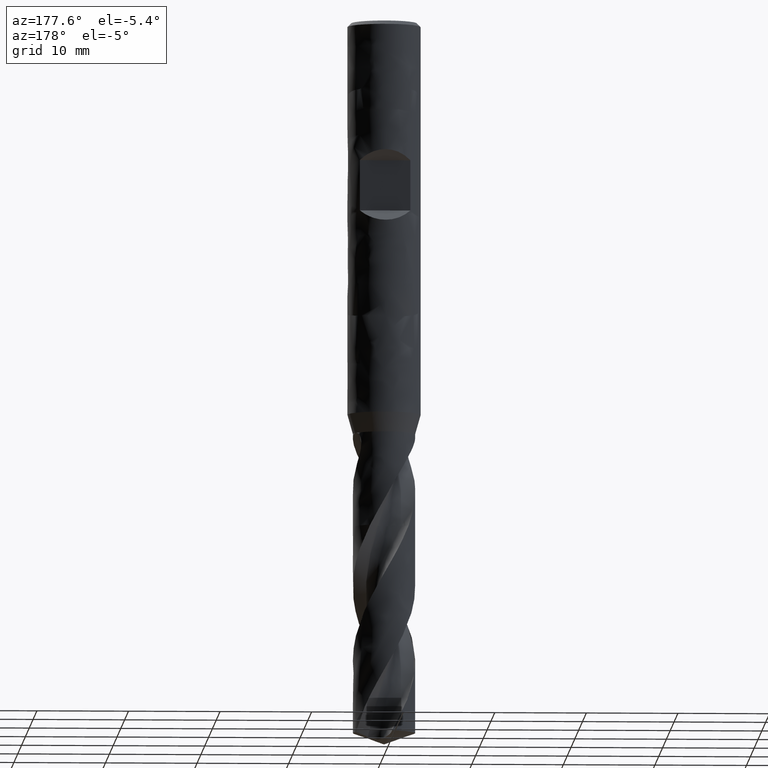
[diagram: clean part render]
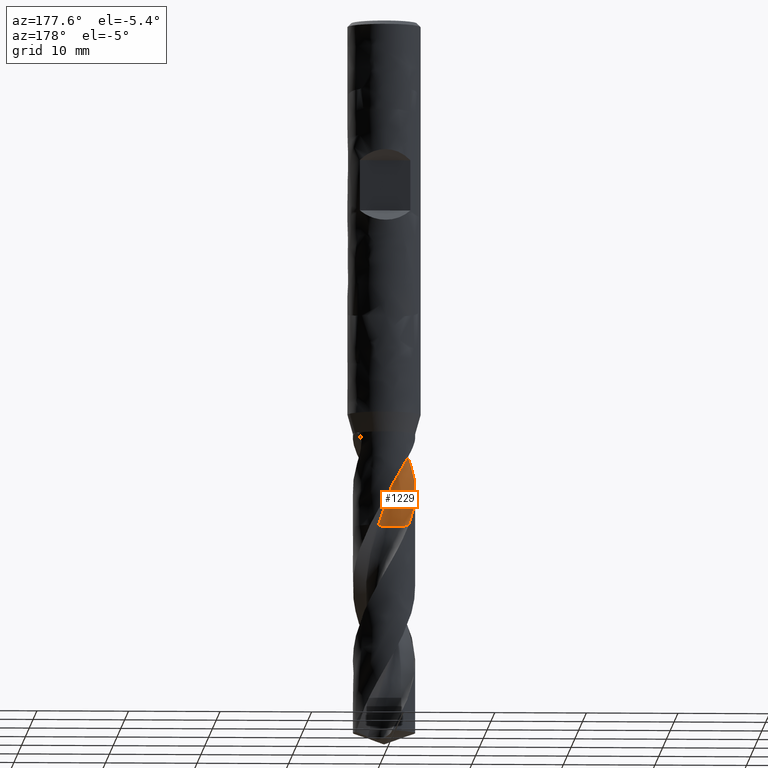
[diagram: same view with one face highlighted and labeled with its STEP entity id]
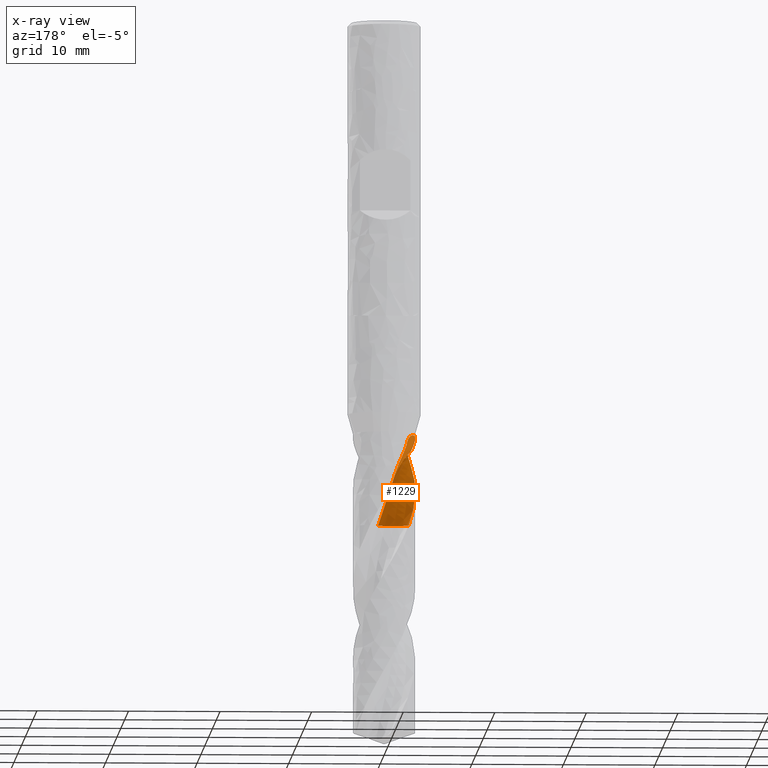
[diagram: x-ray of the same camera — body ghosted, the highlighted face saturated]
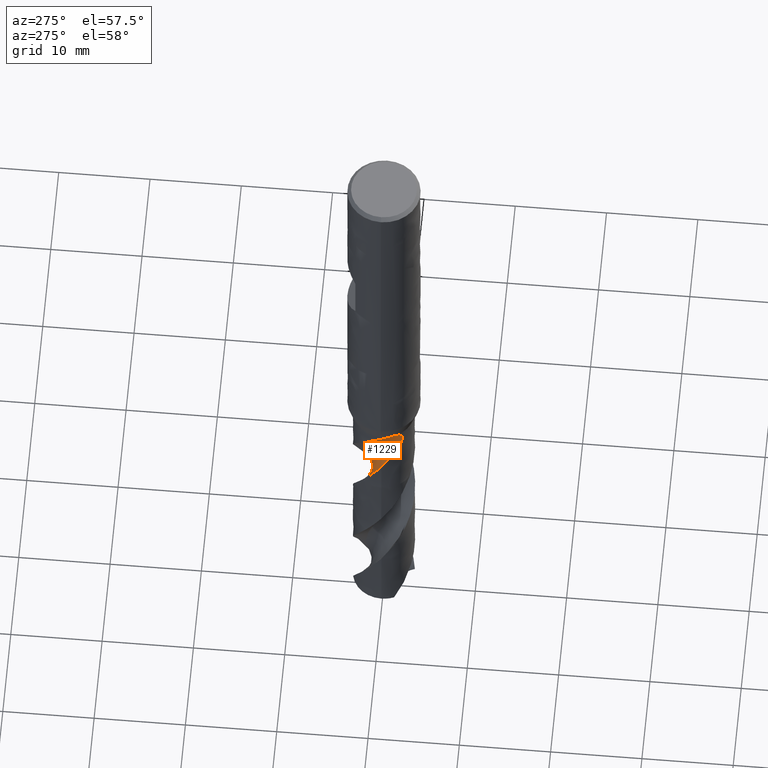
[diagram: same view with one face highlighted and labeled with its STEP entity id]
A machine part, auxiliary view. The second image highlights one B-rep face of the part: STEP entity #1229.
The next image is the same camera in x-ray: the body ghosted, the highlighted face saturated — about 0% of this face is hidden behind the body in this view.
A second angle (auxiliary view) of the same face is appended — the face is thin or edge-on in the first view.
In plain terms, the highlighted face is a freeform B-spline surface patch.
Its self-contained STEP definition (entity closure, byte-faithful):
#72 = EDGE_CURVE('', #73, #75, #77, .T.);
#73 = VERTEX_POINT('', #74);
#74 = CARTESIAN_POINT('', (-3.4, 2.98866225685224E-15, -45.4085586625151));
#75 = VERTEX_POINT('', #76);
#76 = CARTESIAN_POINT('', (-3.2077131535808, -1.12719844053509, -45.));
#77 = B_SPLINE_CURVE_WITH_KNOTS('', 3, (#78, #79, #80, #81, #82, #83, #84, #85, #86, #87, #88, #89, #90, #91, #92, #93, #94, #95, #96, #97, #98, #99), .UNSPECIFIED., .F., .U., (4, 3, 3, 3, 3, 3, 3, 4), (0., 0.19949530803985, 0.398967747899557, 0.598388749788191, 0.797717412571909, 0.996894393467311, 1.12907026997655, 1.2265328783551), .UNSPECIFIED.);
#78 = CARTESIAN_POINT('', (-3.4, 3.12050124102648E-15, -45.4085586625151));
#79 = CARTESIAN_POINT('', (-3.4, -0.0581869301930481, -45.3763666891844));
#80 = CARTESIAN_POINT('', (-3.3985054350403, -0.11705424746419, -45.3453322162482));
#81 = CARTESIAN_POINT('', (-3.39541676686584, -0.176479401875437, -45.3156479924193));
#82 = CARTESIAN_POINT('', (-3.39232845274592, -0.235897744371408, -45.285967171298));
#83 = CARTESIAN_POINT('', (-3.38764277243796, -0.295937463575957, -45.2576039891993));
#84 = CARTESIAN_POINT('', (-3.38126351553826, -0.35645061157169, -45.2307992834079));
#85 = CARTESIAN_POINT('', (-3.37488590365795, -0.416948155038005, -45.2040014897477));
#86 = CARTESIAN_POINT('', (-3.36680695172547, -0.477995762914911, -45.1787266503699));
#87 = CARTESIAN_POINT('', (-3.3569387317618, -0.539409261319715, -45.1552799258174));
#88 = CARTESIAN_POINT('', (-3.34707508113932, -0.60079432306329, -45.1318440579427));
#89 = CARTESIAN_POINT('', (-3.33540764880378, -0.662639850352366, -45.1101975541599));
#90 = CARTESIAN_POINT('', (-3.32186678818892, -0.724707555864718, -45.0907321402638));
#91 = CARTESIAN_POINT('', (-3.30833623167824, -0.786728030102631, -45.0712815388422));
#92 = CARTESIAN_POINT('', (-3.29290719745927, -0.849090730140457, -45.0539701428729));
#93 = CARTESIAN_POINT('', (-3.2755483427962, -0.911473013316948, -45.0393051508743));
#94 = CARTESIAN_POINT('', (-3.26402882974819, -0.952870532851749, -45.029573312573));
#95 = CARTESIAN_POINT('', (-3.25164540155549, -0.994329393548645, -45.0209960251273));
#96 = CARTESIAN_POINT('', (-3.23840645485254, -1.03572372434418, -45.0137570922358));
#97 = CARTESIAN_POINT('', (-3.22864444447719, -1.06624668782259, -45.0084193157814));
#98 = CARTESIAN_POINT('', (-3.21840957326324, -1.09675921627987, -45.0038052905628));
#99 = CARTESIAN_POINT('', (-3.2077131535808, -1.12719844053509, -45.));
#138 = EDGE_CURVE('', #139, #141, #143, .T.);
#139 = VERTEX_POINT('', #140);
#140 = CARTESIAN_POINT('', (-3.13733794034216, -1.32506514095547, -44.98));
#141 = VERTEX_POINT('', #142);
#142 = CARTESIAN_POINT('', (-3.05594404329235, -1.49037109615894, -45.));
#143 = B_SPLINE_CURVE_WITH_KNOTS('', 3, (#144, #145, #146, #147, #148, #149, #150), .UNSPECIFIED., .F., .U., (4, 3, 4), (0., 0.131987123693905, 0.185658540013967), .UNSPECIFIED.);
#144 = CARTESIAN_POINT('', (-3.13733794034048, -1.32506514095945, -44.98));
#145 = CARTESIAN_POINT('', (-3.12020327619716, -1.36558700352142, -44.9800652123309));
#146 = CARTESIAN_POINT('', (-3.10141098581308, -1.40561581076326, -44.9831344568056));
#147 = CARTESIAN_POINT('', (-3.08124115375394, -1.44412810183382, -44.9898875023885));
#148 = CARTESIAN_POINT('', (-3.07303926690881, -1.45978879016189, -44.9926335696621));
#149 = CARTESIAN_POINT('', (-3.06459436767584, -1.47523232270107, -44.9959927043469));
#150 = CARTESIAN_POINT('', (-3.05594404329235, -1.49037109615895, -45.));
#217 = EDGE_CURVE('', #218, #75, #220, .T.);
#218 = VERTEX_POINT('', #219);
#219 = CARTESIAN_POINT('', (-3.13845971803705, -1.322405980758, -44.98));
#220 = B_SPLINE_CURVE_WITH_KNOTS('', 3, (#221, #222, #223, #224, #225, #226, #227), .UNSPECIFIED., .F., .U., (4, 3, 4), (0., 0.131482396513574, 0.208351690079487), .UNSPECIFIED.);
#221 = CARTESIAN_POINT('', (-3.13845971804241, -1.32240598074529, -44.98));
#222 = CARTESIAN_POINT('', (-3.15546064195728, -1.2820102988882, -44.9800648528445));
#223 = CARTESIAN_POINT('', (-3.17093442016183, -1.24088394337896, -44.9830785488343));
#224 = CARTESIAN_POINT('', (-3.1848455474029, -1.19966452982464, -44.9883971217322));
#225 = CARTESIAN_POINT('', (-3.19297848802524, -1.17556619206127, -44.9915065489429));
#226 = CARTESIAN_POINT('', (-3.20059764593672, -1.15138207473079, -44.9954103887137));
#227 = CARTESIAN_POINT('', (-3.20771315358079, -1.12719844053511, -45.));
#229 = EDGE_CURVE('', #139, #218, #230, .T.);
#230 = LINE('', #231, #232);
#231 = CARTESIAN_POINT('', (-3.13733794034216, -1.32506514095547, -44.98));
#232 = VECTOR('', #233, 0.00288609046159721);
#233 = DIRECTION('', (-0.00112177769488753, 0.00265916019746371, 0.));
#1168 = VERTEX_POINT('', #1169);
#1169 = CARTESIAN_POINT('', (-3.38150274850541, 0.354173914695005, -51.6263211859959));
#1188 = VERTEX_POINT('', #1189);
#1189 = CARTESIAN_POINT('', (-3.35671535707677, -0.54079756985858, -50.0542903603469));
#1208 = EDGE_CURVE('', #1168, #1188, #1209, .T.);
#1209 = B_SPLINE_CURVE_WITH_KNOTS('', 3, (#1210, #1211, #1212, #1213, #1214, #1215), .UNSPECIFIED., .F., .U., (4, 1, 1, 4), (27.4236788140041, 27.7607407407407, 28.3916666666667, 28.9957096396531), .UNSPECIFIED.);
#1210 = CARTESIAN_POINT('', (-3.38150274850541, 0.354173914695001, -51.6263211859959));
#1211 = CARTESIAN_POINT('', (-3.37935410510332, 0.289358489053738, -51.513967210417));
#1212 = CARTESIAN_POINT('', (-3.36464826606128, 0.103986794621019, -51.1913045928628));
#1213 = CARTESIAN_POINT('', (-3.30009319514133, -0.187738962802062, -50.6672943176465));
#1214 = CARTESIAN_POINT('', (-3.32895718239262, -0.420013809205352, -50.2556380180091));
#1215 = CARTESIAN_POINT('', (-3.35671535707677, -0.54079756985858, -50.0542903603469));
#1229 = ADVANCED_FACE('', (#1230), #1504, .T.);
#1230 = FACE_OUTER_BOUND('', #1231, .T.);
#1231 = EDGE_LOOP('', (#1232, #1306, #1346, #1347, #1447, #1448, #1449, #1450, #1451, #1484));
#1232 = ORIENTED_EDGE('', *, *, #1233, .T.);
#1233 = EDGE_CURVE('', #1234, #1236, #1238, .T.);
#1234 = VERTEX_POINT('', #1235);
#1235 = CARTESIAN_POINT('', (0.720814229882543, 1.9036234756146, -55.2));
#1236 = VERTEX_POINT('', #1237);
#1237 = CARTESIAN_POINT('', (-2.5948366004809, 2.19700318998511, -55.2));
#1238 = B_SPLINE_CURVE_WITH_KNOTS('', 3, (#1239, #1240, #1241, #1242, #1243, #1244, #1245, #1246, #1247, #1248, #1249, #1250, #1251, #1252, #1253, #1254, #1255, #1256, #1257, #1258, #1259, #1260, #1261, #1262, #1263, #1264, #1265, #1266, #1267, #1268, #1269, #1270, #1271, #1272, #1273, #1274, #1275, #1276, #1277, #1278, #1279, #1280, #1281, #1282, #1283, #1284, #1285, #1286, #1287, #1288, #1289, #1290, #1291, #1292, #1293, #1294, #1295, #1296, #1297, #1298, #1299, #1300, #1301, #1302, #1303, #1304, #1305), .UNSPECIFIED., .F., .U., (4, 3, 3, 3, 3, 3, 3, 3, 3, 3, 3, 3, 3, 3, 3, 3, 3, 3, 3, 3, 3, 3, 4), (0., 0.198227059177577, 0.39620735807275, 0.593946984001761, 0.791450697749671, 0.988722034256852, 1.18576337616208, 1.38257600348874, 1.57916012166277, 1.77551486911902, 1.90646792409242, 1.94534895110647, 1.97128956967867, 2.16949934581688, 2.36746282770016, 2.5651860070786, 2.76267355709214, 2.95992893094867, 3.15695443372605, 3.35375127050141, 3.55031957292769, 3.74665840545374, 3.89153564839687), .UNSPECIFIED.);
#1239 = CARTESIAN_POINT('', (0.720814229882547, 1.9036234756146, -55.2));
#1240 = CARTESIAN_POINT('', (0.677999972904944, 1.85329519597284, -55.2));
#1241 = CARTESIAN_POINT('', (0.632684334585393, 1.80499263800784, -55.2));
#1242 = CARTESIAN_POINT('', (0.585187642072529, 1.75905724280347, -55.2));
#1243 = CARTESIAN_POINT('', (0.537750075177057, 1.71317902965658, -55.2));
#1244 = CARTESIAN_POINT('', (0.488025327367614, 1.66955417678228, -55.2));
#1245 = CARTESIAN_POINT('', (0.436364019882519, 1.62849029358252, -55.2));
#1246 = CARTESIAN_POINT('', (0.384765514000298, 1.5874763293223, -55.2));
#1247 = CARTESIAN_POINT('', (0.331114108902502, 1.54892087399698, -55.2));
#1248 = CARTESIAN_POINT('', (0.275787196037794, 1.51309513204406, -55.2));
#1249 = CARTESIAN_POINT('', (0.220526290644407, 1.47731213179698, -55.2));
#1250 = CARTESIAN_POINT('', (0.163464543983149, 1.44416856997245, -55.2));
#1251 = CARTESIAN_POINT('', (0.105002380840547, 1.41389702801854, -55.2));
#1252 = CARTESIAN_POINT('', (0.0466090026129235, 1.38366110269815, -55.2));
#1253 = CARTESIAN_POINT('', (-0.0133178389452442, 1.35621982658235, -55.2));
#1254 = CARTESIAN_POINT('', (-0.0743586008017741, 1.33176531385384, -55.2));
#1255 = CARTESIAN_POINT('', (-0.135328196487005, 1.30733931213975, -55.2));
#1256 = CARTESIAN_POINT('', (-0.197551142034229, 1.28583619574632, -55.2));
#1257 = CARTESIAN_POINT('', (-0.260592832962403, 1.2674061560645, -55.2));
#1258 = CARTESIAN_POINT('', (-0.323561348618662, 1.24899750894283, -55.2));
#1259 = CARTESIAN_POINT('', (-0.387493053590712, 1.23361200762725, -55.2));
#1260 = CARTESIAN_POINT('', (-0.451942442569344, 1.22135686531541, -55.2));
#1261 = CARTESIAN_POINT('', (-0.516317002633475, 1.2091159518273, -55.2));
#1262 = CARTESIAN_POINT('', (-0.581357311718745, 1.19996973196331, -55.2));
#1263 = CARTESIAN_POINT('', (-0.64661118926392, 1.19398179310315, -55.2));
#1264 = CARTESIAN_POINT('', (-0.711788929790142, 1.18800084085945, -55.2));
#1265 = CARTESIAN_POINT('', (-0.777330519714979, 1.18515695068106, -55.2));
#1266 = CARTESIAN_POINT('', (-0.842781354278175, 1.18546984815007, -55.2));
#1267 = CARTESIAN_POINT('', (-0.886431873797798, 1.18567852596403, -55.2));
#1268 = CARTESIAN_POINT('', (-0.930098154497489, 1.18728975536371, -55.2));
#1269 = CARTESIAN_POINT('', (-0.973645352921861, 1.19029856079965, -55.2));
#1270 = CARTESIAN_POINT('', (-0.986574870287213, 1.19119189960308, -55.2));
#1271 = CARTESIAN_POINT('', (-0.99949646082611, 1.19220850224064, -55.2));
#1272 = CARTESIAN_POINT('', (-1.01240660448204, 1.19334809177282, -55.2));
#1273 = CARTESIAN_POINT('', (-1.02101998581504, 1.19410840238326, -55.2));
#1274 = CARTESIAN_POINT('', (-1.02962870705846, 1.19492349357835, -55.2));
#1275 = CARTESIAN_POINT('', (-1.0382317242762, 1.19579326651611, -55.2));
#1276 = CARTESIAN_POINT('', (-1.10396655292325, 1.20243911803287, -55.2));
#1277 = CARTESIAN_POINT('', (-1.16945519356442, 1.21229374284652, -55.2));
#1278 = CARTESIAN_POINT('', (-1.23423480072529, 1.22528749271804, -55.2));
#1279 = CARTESIAN_POINT('', (-1.29893391314271, 1.23826509663548, -55.2));
#1280 = CARTESIAN_POINT('', (-1.36307789407858, 1.25440452702551, -55.2));
#1281 = CARTESIAN_POINT('', (-1.4262145254898, 1.27359200015473, -55.2));
#1282 = CARTESIAN_POINT('', (-1.48927451705546, 1.29275618213038, -55.2));
#1283 = CARTESIAN_POINT('', (-1.5514775302446, 1.31500594799029, -55.2));
#1284 = CARTESIAN_POINT('', (-1.61238609305999, 1.34018481577303, -55.2));
#1285 = CARTESIAN_POINT('', (-1.67322207032412, 1.36533367756132, -55.2));
#1286 = CARTESIAN_POINT('', (-1.73290905131874, 1.39346349916445, -55.2));
#1287 = CARTESIAN_POINT('', (-1.79102825738641, 1.42437691477953, -55.2));
#1288 = CARTESIAN_POINT('', (-1.84907913563336, 1.45525398705025, -55.2));
#1289 = CARTESIAN_POINT('', (-1.90570145798338, 1.48898018283602, -55.2));
#1290 = CARTESIAN_POINT('', (-1.9604988801171, 1.52531942587646, -55.2));
#1291 = CARTESIAN_POINT('', (-2.01523244420571, 1.56161632106675, -55.2));
#1292 = CARTESIAN_POINT('', (-2.06827285265795, 1.60060470436933, -55.2));
#1293 = CARTESIAN_POINT('', (-2.11924969710424, 1.64201229991166, -55.2));
#1294 = CARTESIAN_POINT('', (-2.17016737828967, 1.68337183817616, -55.2));
#1295 = CARTESIAN_POINT('', (-2.21914461482597, 1.72724107362189, -55.2));
#1296 = CARTESIAN_POINT('', (-2.26584016563538, 1.77331435435335, -55.2));
#1297 = CARTESIAN_POINT('', (-2.31248149028199, 1.81933413154586, -55.2));
#1298 = CARTESIAN_POINT('', (-2.35695457043508, 1.86765951788464, -55.2));
#1299 = CARTESIAN_POINT('', (-2.39895026500067, 1.9179545941406, -55.2));
#1300 = CARTESIAN_POINT('', (-2.44089693463333, 1.96819095693163, -55.2));
#1301 = CARTESIAN_POINT('', (-2.48046903523299, 2.02050859942259, -55.2));
#1302 = CARTESIAN_POINT('', (-2.51739213411799, 2.07454469854598, -55.2));
#1303 = CARTESIAN_POINT('', (-2.54463746657999, 2.11441761089692, -55.2));
#1304 = CARTESIAN_POINT('', (-2.57049015365701, 2.15529698172587, -55.2));
#1305 = CARTESIAN_POINT('', (-2.5948366004809, 2.19700318998511, -55.2));
#1306 = ORIENTED_EDGE('', *, *, #1307, .F.);
#1307 = EDGE_CURVE('', #1168, #1236, #1308, .T.);
#1308 = B_SPLINE_CURVE_WITH_KNOTS('', 3, (#1309, #1310, #1311, #1312, #1313, #1314, #1315, #1316, #1317, #1318, #1319, #1320, #1321, #1322, #1323, #1324, #1325, #1326, #1327, #1328, #1329, #1330, #1331, #1332, #1333, #1334, #1335, #1336, #1337, #1338, #1339, #1340, #1341, #1342, #1343, #1344, #1345), .UNSPECIFIED., .F., .U., (4, 3, 3, 3, 3, 3, 3, 3, 3, 3, 3, 3, 4), (0., 0.295825946567023, 0.59160172682673, 1.03537001282404, 1.47912344320711, 1.77485854566974, 2.07057975933555, 2.3663097558353, 2.56342166128523, 3.007027908573, 3.30269293232862, 3.96803797655142, 4.111886611985), .UNSPECIFIED.);
#1309 = CARTESIAN_POINT('', (-3.38150274850541, 0.354173914695011, -51.626321185996));
#1310 = CARTESIAN_POINT('', (-3.37660136726876, 0.400970229825816, -51.7129799823255));
#1311 = CARTESIAN_POINT('', (-3.37070113652021, 0.44791469608112, -51.7995081920098));
#1312 = CARTESIAN_POINT('', (-3.36379120329066, 0.494882552394597, -51.8859370004316));
#1313 = CARTESIAN_POINT('', (-3.35688244185092, 0.54184244387625, -51.9723511522143));
#1314 = CARTESIAN_POINT('', (-3.34896557069564, 0.588824343587832, -52.0586788278979));
#1315 = CARTESIAN_POINT('', (-3.34002794634231, 0.635777726609355, -52.144910299616));
#1316 = CARTESIAN_POINT('', (-3.32661834858321, 0.706224408507855, -52.2742880071814));
#1317 = CARTESIAN_POINT('', (-3.31090839742392, 0.776622115886648, -52.4034755986562));
#1318 = CARTESIAN_POINT('', (-3.29285069377956, 0.846837828911451, -52.5324128566577));
#1319 = CARTESIAN_POINT('', (-3.27479359463599, 0.917051191390757, -52.6613457983477));
#1320 = CARTESIAN_POINT('', (-3.25437783836448, 0.987112152026489, -52.7900536255486));
#1321 = CARTESIAN_POINT('', (-3.2316115349962, 1.05673406630027, -52.9185610690558));
#1322 = CARTESIAN_POINT('', (-3.21643915637707, 1.10313290525375, -53.004203588912));
#1323 = CARTESIAN_POINT('', (-3.20022160904715, 1.14934276123285, -53.0897699947115));
#1324 = CARTESIAN_POINT('', (-3.18297363274164, 1.19527354746584, -53.175271835194));
#1325 = CARTESIAN_POINT('', (-3.16572646646388, 1.24120217662192, -53.2607696601988));
#1326 = CARTESIAN_POINT('', (-3.14744645287509, 1.28685865528641, -53.3462120551979));
#1327 = CARTESIAN_POINT('', (-3.12815446125566, 1.3321597751495, -53.4316076604703));
#1328 = CARTESIAN_POINT('', (-3.10886189666969, 1.37746224044266, -53.5170058019673));
#1329 = CARTESIAN_POINT('', (-3.08855461014928, 1.42241445038192, -53.6023672400044));
#1330 = CARTESIAN_POINT('', (-3.06727587788231, 1.46690786655512, -53.6877189268737));
#1331 = CARTESIAN_POINT('', (-3.05309303707365, 1.49656391141253, -53.7446080954778));
#1332 = CARTESIAN_POINT('', (-3.03847893622709, 1.52601610938034, -53.8014980082676));
#1333 = CARTESIAN_POINT('', (-3.02345063625486, 1.55523189593388, -53.8583979159166));
#1334 = CARTESIAN_POINT('', (-2.98962899702624, 1.62098289867006, -53.9864528623976));
#1335 = CARTESIAN_POINT('', (-2.95369624376369, 1.68556495750301, -54.1145729912831));
#1336 = CARTESIAN_POINT('', (-2.91572036578301, 1.74887813999666, -54.2426918445925));
#1337 = CARTESIAN_POINT('', (-2.89040931812769, 1.79107658449666, -54.3280834819711));
#1338 = CARTESIAN_POINT('', (-2.86418592026526, 1.83271946093426, -54.413485917461));
#1339 = CARTESIAN_POINT('', (-2.83706577426643, 1.8737816821834, -54.4988760881653));
#1340 = CARTESIAN_POINT('', (-2.77603638868094, 1.96618539320022, -54.6910324892904));
#1341 = CARTESIAN_POINT('', (-2.71044091954591, 2.05566953799557, -54.8832187288299));
#1342 = CARTESIAN_POINT('', (-2.64067373476332, 2.14169144055141, -55.0753642112545));
#1343 = CARTESIAN_POINT('', (-2.62558996068826, 2.16028950994037, -55.1169063639938));
#1344 = CARTESIAN_POINT('', (-2.61030810675981, 2.17873010283617, -55.1584562199713));
#1345 = CARTESIAN_POINT('', (-2.5948366004809, 2.19700318998511, -55.2));
#1346 = ORIENTED_EDGE('', *, *, #1208, .T.);
#1347 = ORIENTED_EDGE('', *, *, #1348, .T.);
#1348 = EDGE_CURVE('', #1188, #141, #1349, .T.);
#1349 = B_SPLINE_CURVE_WITH_KNOTS('', 3, (#1350, #1351, #1352, #1353, #1354, #1355, #1356, #1357, #1358, #1359, #1360, #1361, #1362, #1363, #1364, #1365, #1366, #1367, #1368, #1369, #1370, #1371, #1372, #1373, #1374, #1375, #1376, #1377, #1378, #1379, #1380, #1381, #1382, #1383, #1384, #1385, #1386, #1387, #1388, #1389, #1390, #1391, #1392, #1393, #1394, #1395, #1396, #1397, #1398, #1399, #1400, #1401, #1402, #1403, #1404, #1405, #1406, #1407, #1408, #1409, #1410, #1411, #1412, #1413, #1414, #1415, #1416, #1417, #1418, #1419, #1420, #1421, #1422, #1423, #1424, #1425, #1426, #1427, #1428, #1429, #1430, #1431, #1432, #1433, #1434, #1435, #1436, #1437, #1438, #1439, #1440, #1441, #1442, #1443, #1444, #1445, #1446), .UNSPECIFIED., .F., .U., (4, 3, 3, 3, 3, 3, 3, 3, 3, 3, 3, 3, 3, 3, 3, 3, 3, 3, 3, 3, 3, 3, 3, 3, 3, 3, 3, 3, 3, 3, 3, 3, 4), (0., 0.295935055596886, 0.591722401350313, 0.887311664046614, 1.18267132469241, 1.4777910041583, 1.77266092452334, 2.0672667307963, 2.3616272552957, 2.65576471645165, 2.94972851593593, 3.24359142521461, 3.4398695726118, 3.6361784857306, 3.83255734877069, 4.02905814103507, 4.22575591087514, 4.42275349300109, 4.62019359469914, 4.67864232952321, 4.73712066163839, 4.86915777998035, 5.00150010474124, 5.1341794245906, 5.22243499881277, 5.3107625568691, 5.39913510928529, 5.48751629758438, 5.57586525984149, 5.66414351172182, 5.75232121798765, 5.84038054167463, 5.99612600235815), .UNSPECIFIED.);
#1350 = CARTESIAN_POINT('', (-3.35671535707677, -0.540797569858577, -50.0542903603469));
#1351 = CARTESIAN_POINT('', (-3.34812211880466, -0.594135558937483, -49.9717551868858));
#1352 = CARTESIAN_POINT('', (-3.3381444762737, -0.647942734287077, -49.8896551310918));
#1353 = CARTESIAN_POINT('', (-3.32676560030334, -0.701876513810216, -49.8078473790799));
#1354 = CARTESIAN_POINT('', (-3.31539240386285, -0.75578337340623, -49.7260804597103));
#1355 = CARTESIAN_POINT('', (-3.30261683385513, -0.809827241486416, -49.644587521126));
#1356 = CARTESIAN_POINT('', (-3.28847800010068, -0.863662227293632, -49.5632056073171));
#1357 = CARTESIAN_POINT('', (-3.27434863484938, -0.91746116085344, -49.4818781933999));
#1358 = CARTESIAN_POINT('', (-3.25885472338853, -0.97106235284308, -49.4006456568115));
#1359 = CARTESIAN_POINT('', (-3.24209421406029, -1.02412162713069, -49.3193319973922));
#1360 = CARTESIAN_POINT('', (-3.22534672363291, -1.07713968707221, -49.238081499208));
#1361 = CARTESIAN_POINT('', (-3.20733255284337, -1.12962358870849, -49.1567312725228));
#1362 = CARTESIAN_POINT('', (-3.18820334544068, -1.18125332935862, -49.075113383091));
#1363 = CARTESIAN_POINT('', (-3.16908968061328, -1.23284112059002, -48.9935618085966));
#1364 = CARTESIAN_POINT('', (-3.14885891012788, -1.2835875300021, -48.9117259868294));
#1365 = CARTESIAN_POINT('', (-3.12770849183112, -1.33320650693366, -48.8294586869836));
#1366 = CARTESIAN_POINT('', (-3.10657597308435, -1.38278349144003, -48.747261009763));
#1367 = CARTESIAN_POINT('', (-3.08451889402596, -1.43124986729573, -48.6646149058704));
#1368 = CARTESIAN_POINT('', (-3.06178829923336, -1.47832757218343, -48.5813807263245));
#1369 = CARTESIAN_POINT('', (-3.03907806416547, -1.52536310971384, -48.4982210993805));
#1370 = CARTESIAN_POINT('', (-3.01568953584114, -1.57102532445415, -48.4144502950771));
#1371 = CARTESIAN_POINT('', (-2.99191993029416, -1.61505886292375, -48.3299537066071));
#1372 = CARTESIAN_POINT('', (-2.96817011475431, -1.65905574011859, -48.245527467983));
#1373 = CARTESIAN_POINT('', (-2.94403096251662, -1.70144331945818, -48.1603478831293));
#1374 = CARTESIAN_POINT('', (-2.91984911534914, -1.74197621786143, -48.0743252632907));
#1375 = CARTESIAN_POINT('', (-2.8956855929339, -1.78247840085591, -47.9883678304987));
#1376 = CARTESIAN_POINT('', (-2.87147007828286, -1.82114455828852, -47.9015292456017));
#1377 = CARTESIAN_POINT('', (-2.84760392844394, -1.857727608319, -47.8137507161234));
#1378 = CARTESIAN_POINT('', (-2.82375186941638, -1.89428905935424, -47.7260240119588));
#1379 = CARTESIAN_POINT('', (-2.80023446547284, -1.92879218347353, -47.6373090946054));
#1380 = CARTESIAN_POINT('', (-2.77751026818137, -1.96097850833379, -47.5475912792358));
#1381 = CARTESIAN_POINT('', (-2.75479386997585, -1.99315378664704, -47.4579042555788));
#1382 = CARTESIAN_POINT('', (-2.73285208274193, -2.0230396893914, -47.3671472419364));
#1383 = CARTESIAN_POINT('', (-2.71222423216939, -2.05032673358008, -47.275359691067));
#1384 = CARTESIAN_POINT('', (-2.69844639166171, -2.06855241062944, -47.214052564955));
#1385 = CARTESIAN_POINT('', (-2.68524854000149, -2.08562821922462, -47.1522539976714));
#1386 = CARTESIAN_POINT('', (-2.67281330158212, -2.10144451625202, -47.0899982549735));
#1387 = CARTESIAN_POINT('', (-2.66037611399476, -2.11726329241322, -47.0277327539664));
#1388 = CARTESIAN_POINT('', (-2.64869443709926, -2.13183172269772, -46.9649745172619));
#1389 = CARTESIAN_POINT('', (-2.63797465087554, -2.1450150911679, -46.9017827859272));
#1390 = CARTESIAN_POINT('', (-2.62725104491593, -2.15820315721178, -46.8385685377512));
#1391 = CARTESIAN_POINT('', (-2.61748228019565, -2.17001507858256, -46.7748741258283));
#1392 = CARTESIAN_POINT('', (-2.60890454100428, -2.18027913257161, -46.710795786514));
#1393 = CARTESIAN_POINT('', (-2.60032147599999, -2.19054955938573, -46.6466776617457));
#1394 = CARTESIAN_POINT('', (-2.5929225145513, -2.19928096245978, -46.5821135320246));
#1395 = CARTESIAN_POINT('', (-2.58697816449397, -2.20625111363856, -46.5172570266411));
#1396 = CARTESIAN_POINT('', (-2.5810278556634, -2.21322825188067, -46.4523355073865));
#1397 = CARTESIAN_POINT('', (-2.57652741381941, -2.21845081841166, -46.3870366746881));
#1398 = CARTESIAN_POINT('', (-2.57379023300547, -2.22162189323152, -46.3216047068036));
#1399 = CARTESIAN_POINT('', (-2.57104888010338, -2.22479780149302, -46.256073005669));
#1400 = CARTESIAN_POINT('', (-2.57007275312275, -2.22592208235541, -46.1902888122987));
#1401 = CARTESIAN_POINT('', (-2.57121973862342, -2.22459638040551, -46.1246463549924));
#1402 = CARTESIAN_POINT('', (-2.57236930062035, -2.22326770050505, -46.0588564437336));
#1403 = CARTESIAN_POINT('', (-2.5756576548986, -2.21947454042465, -45.9930372199119));
#1404 = CARTESIAN_POINT('', (-2.58146363209448, -2.21270095498094, -45.9278313269609));
#1405 = CARTESIAN_POINT('', (-2.58318239144781, -2.21069575190415, -45.9085282476306));
#1406 = CARTESIAN_POINT('', (-2.58512254831918, -2.20842763225882, -45.889268702942));
#1407 = CARTESIAN_POINT('', (-2.58729349553254, -2.20588131321134, -45.8700752902118));
#1408 = CARTESIAN_POINT('', (-2.58946554207093, -2.20333370475793, -45.8508721583145));
#1409 = CARTESIAN_POINT('', (-2.59186941317045, -2.20050668891362, -45.8317283552503));
#1410 = CARTESIAN_POINT('', (-2.59451390483219, -2.1973842626251, -45.8126698797712));
#1411 = CARTESIAN_POINT('', (-2.60048485246128, -2.1903341954556, -45.769638109007));
#1412 = CARTESIAN_POINT('', (-2.60769567830288, -2.18176571660201, -45.726967426863));
#1413 = CARTESIAN_POINT('', (-2.61622603531921, -2.1714882758417, -45.6850306151295));
#1414 = CARTESIAN_POINT('', (-2.62477611042503, -2.16118707857314, -45.6429968656235));
#1415 = CARTESIAN_POINT('', (-2.63467803247685, -2.14913797630016, -45.601586270329));
#1416 = CARTESIAN_POINT('', (-2.64595348286353, -2.13516513799808, -45.5612913754243));
#1417 = CARTESIAN_POINT('', (-2.65725764493717, -2.12115671940913, -45.5208938740278));
#1418 = CARTESIAN_POINT('', (-2.66998598940769, -2.10516036523281, -45.4814777423419));
#1419 = CARTESIAN_POINT('', (-2.684055547359, -2.08706631870943, -45.4436540591514));
#1420 = CARTESIAN_POINT('', (-2.69341433000467, -2.07503052844659, -45.4184945174612));
#1421 = CARTESIAN_POINT('', (-2.70338599508038, -2.06204010431465, -45.3939815689343));
#1422 = CARTESIAN_POINT('', (-2.71391009279931, -2.04809472637426, -45.3703126146012));
#1423 = CARTESIAN_POINT('', (-2.72444277428092, -2.03413797417472, -45.3466243551749));
#1424 = CARTESIAN_POINT('', (-2.73555222566591, -2.01919319126074, -45.3237301979871));
#1425 = CARTESIAN_POINT('', (-2.74714508667626, -2.00329575269116, -45.3018272537485));
#1426 = CARTESIAN_POINT('', (-2.75874385312962, -1.98739021591206, -45.2799131520752));
#1427 = CARTESIAN_POINT('', (-2.77085435088451, -1.970492252213, -45.2589394480727));
#1428 = CARTESIAN_POINT('', (-2.78335217836989, -1.95267781550454, -45.2390850911573));
#1429 = CARTESIAN_POINT('', (-2.79585122715953, -1.93486163794572, -45.2192287940479));
#1430 = CARTESIAN_POINT('', (-2.80876886508417, -1.916083649158, -45.2004424821072));
#1431 = CARTESIAN_POINT('', (-2.8219576425238, -1.89645855841922, -45.1828690105807));
#1432 = CARTESIAN_POINT('', (-2.83514161099781, -1.87684062349053, -45.1653019467914));
#1433 = CARTESIAN_POINT('', (-2.84862945723662, -1.85632656915983, -45.1489022125218));
#1434 = CARTESIAN_POINT('', (-2.86226339686786, -1.83506082922351, -45.1337639787787));
#1435 = CARTESIAN_POINT('', (-2.87588642453155, -1.81381210939071, -45.1186378609698));
#1436 = CARTESIAN_POINT('', (-2.88968814795519, -1.79176128975256, -45.1047335912294));
#1437 = CARTESIAN_POINT('', (-2.90351433958579, -1.76906881715224, -45.0920930797878));
#1438 = CARTESIAN_POINT('', (-2.91732478370322, -1.74640219042623, -45.0794669654141));
#1439 = CARTESIAN_POINT('', (-2.93119066203752, -1.72304434749911, -45.0680720729014));
#1440 = CARTESIAN_POINT('', (-2.94497259848737, -1.69915755424827, -45.0579033741686));
#1441 = CARTESIAN_POINT('', (-2.95873603206108, -1.67530283010317, -45.0477483273761));
#1442 = CARTESIAN_POINT('', (-2.97244369406482, -1.65087229852803, -45.0387943813469));
#1443 = CARTESIAN_POINT('', (-2.98597766024086, -1.62601888443616, -45.0310005048623));
#1444 = CARTESIAN_POINT('', (-3.00991440775046, -1.58206208048593, -45.0172159238232));
#1445 = CARTESIAN_POINT('', (-3.03339589238732, -1.53660514325168, -45.0070126278577));
#1446 = CARTESIAN_POINT('', (-3.05594404329235, -1.49037109615894, -45.));
#1447 = ORIENTED_EDGE('', *, *, #138, .F.);
#1448 = ORIENTED_EDGE('', *, *, #229, .T.);
#1449 = ORIENTED_EDGE('', *, *, #217, .T.);
#1450 = ORIENTED_EDGE('', *, *, #72, .F.);
#1451 = ORIENTED_EDGE('', *, *, #1452, .F.);
#1452 = EDGE_CURVE('', #1453, #73, #1455, .T.);
#1453 = VERTEX_POINT('', #1454);
#1454 = CARTESIAN_POINT('', (-2.8898286594235, 1.79133757822879, -46.9998791961814));
#1455 = B_SPLINE_CURVE_WITH_KNOTS('', 3, (#1456, #1457, #1458, #1459, #1460, #1461, #1462, #1463, #1464, #1465, #1466, #1467, #1468, #1469, #1470, #1471, #1472, #1473, #1474, #1475, #1476, #1477, #1478, #1479, #1480, #1481, #1482, #1483), .UNSPECIFIED., .F., .U., (4, 3, 3, 3, 3, 3, 3, 3, 3, 4), (0., 0.298147437788339, 0.596401648626703, 0.894725458992335, 1.19308228250035, 1.49141930924379, 1.78969116485611, 2.08784747407281, 2.38582261798666, 2.48078010305395), .UNSPECIFIED.);
#1456 = CARTESIAN_POINT('', (-2.8898286594235, 1.79133757822879, -46.9998791961814));
#1457 = CARTESIAN_POINT('', (-2.92361918789611, 1.73682588887219, -46.9239611278877));
#1458 = CARTESIAN_POINT('', (-2.95664542453151, 1.68010016735598, -46.8492429435373));
#1459 = CARTESIAN_POINT('', (-2.98859184953946, 1.62120904169276, -46.7758390033723));
#1460 = CARTESIAN_POINT('', (-3.02054971525359, 1.56229682584291, -46.7024087756677));
#1461 = CARTESIAN_POINT('', (-3.05145003664322, 1.5011744447202, -46.6302350025866));
#1462 = CARTESIAN_POINT('', (-3.08096976832522, 1.4379239502373, -46.5594401363378));
#1463 = CARTESIAN_POINT('', (-3.11049638862537, 1.37465869584707, -46.4886287496543));
#1464 = CARTESIAN_POINT('', (-3.13866663282486, 1.30921072357892, -46.4191367171227));
#1465 = CARTESIAN_POINT('', (-3.16515564580097, 1.24168826114056, -46.3511101380432));
#1466 = CARTESIAN_POINT('', (-3.19164759010714, 1.17415832652403, -46.2830760309989));
#1467 = CARTESIAN_POINT('', (-3.21648321287793, 1.10448813911186, -46.2164452699896));
#1468 = CARTESIAN_POINT('', (-3.23933338330994, 1.03282100664819, -46.1513880125972));
#1469 = CARTESIAN_POINT('', (-3.26218203757269, 0.961158629488353, -46.086335071926));
#1470 = CARTESIAN_POINT('', (-3.28306865200546, 0.887425984651866, -46.0227838238254));
#1471 = CARTESIAN_POINT('', (-3.30166271963745, 0.811802491839128, -45.9609389341781));
#1472 = CARTESIAN_POINT('', (-3.32025272543229, 0.73619551882824, -45.8991075544241));
#1473 = CARTESIAN_POINT('', (-3.33657325053636, 0.658607991902076, -45.8389072791148));
#1474 = CARTESIAN_POINT('', (-3.35029350481341, 0.579252476563597, -45.7806013702073));
#1475 = CARTESIAN_POINT('', (-3.36400844405353, 0.499927702455298, -45.7223180482032));
#1476 = CARTESIAN_POINT('', (-3.37514365982137, 0.418727039914867, -45.6658465200189));
#1477 = CARTESIAN_POINT('', (-3.38336631956356, 0.335905265875534, -45.6115288748079));
#1478 = CARTESIAN_POINT('', (-3.39158398306521, 0.253133815882053, -45.5572442340055));
#1479 = CARTESIAN_POINT('', (-3.39690526916603, 0.168609416016731, -45.5050217211331));
#1480 = CARTESIAN_POINT('', (-3.39899545245636, 0.082643294833694, -45.4553133486285));
#1481 = CARTESIAN_POINT('', (-3.39966154341272, 0.0552479672862031, -45.4394724903011));
#1482 = CARTESIAN_POINT('', (-3.4, 0.0276963133078537, -45.4238816736519));
#1483 = CARTESIAN_POINT('', (-3.4, 3.12050124102648E-15, -45.4085586625151));
#1484 = ORIENTED_EDGE('', *, *, #1485, .F.);
#1485 = EDGE_CURVE('', #1234, #1453, #1486, .T.);
#1486 = (
   BOUNDED_CURVE ()
   B_SPLINE_CURVE (3, (#1487, #1488, #1489, #1490, #1491, #1492, #1493, #1494, #1495, #1496, #1497, #1498, #1499, #1500, #1501, #1502, #1503), .UNSPECIFIED., .F., .U.)
   B_SPLINE_CURVE_WITH_KNOTS ((4, 1, 1, 1, 1, 1, 1, 1, 1, 1, 1, 1, 1, 1, 4), (23.85, 23.9751851851852, 24.6061111111111, 25.237037037037, 25.867962962963, 26.4988888888889, 27.1298148148148, 27.7607407407407, 28.3916666666667, 29.0225925925926, 29.6535185185185, 30.2844444444444, 30.9153703703704, 31.5462962962963, 32.0501208038186), .UNSPECIFIED.)
   CURVE ()
   GEOMETRIC_REPRESENTATION_ITEM ()
   RATIONAL_B_SPLINE_CURVE ((1., 1., 1., 1., 1., 1., 1., 1., 1., 1., 1., 1., 1., 1., 1., 1., 1.))
   REPRESENTATION_ITEM ('')
);
#1487 = CARTESIAN_POINT('', (0.720814229882543, 1.9036234756146, -55.2));
#1488 = CARTESIAN_POINT('', (0.70759183883243, 1.9090091397429, -55.1582716049383));
#1489 = CARTESIAN_POINT('', (0.627370485548131, 1.94072239888822, -54.9062345679012));
#1490 = CARTESIAN_POINT('', (0.476414753450883, 1.98978681831698, -54.4438888888889));
#1491 = CARTESIAN_POINT('', (0.26396310999214, 2.03428888287693, -53.812962962963));
#1492 = CARTESIAN_POINT('', (0.0473302964173517, 2.05892578556003, -53.182037037037));
#1493 = CARTESIAN_POINT('', (-0.171188323276467, 2.05035285764608, -52.5511111111111));
#1494 = CARTESIAN_POINT('', (-0.384370942117553, 2.00418099280542, -51.9201851851852));
#1495 = CARTESIAN_POINT('', (-0.586545689954891, 1.92322541867269, -51.2892592592593));
#1496 = CARTESIAN_POINT('', (-0.767757361718004, 1.80943617464292, -50.6583333333333));
#1497 = CARTESIAN_POINT('', (-0.976611123940487, 1.7644842792747, -50.0274074074074));
#1498 = CARTESIAN_POINT('', (-1.23036533993876, 1.75890066743636, -49.3964814814815));
#1499 = CARTESIAN_POINT('', (-1.54766326206327, 1.78108335279087, -48.7655555555556));
#1500 = CARTESIAN_POINT('', (-1.94229274569453, 1.80962270791219, -48.1346296296296));
#1501 = CARTESIAN_POINT('', (-2.39163712241215, 1.82076232190864, -47.5460708431716));
#1502 = CARTESIAN_POINT('', (-2.7299253379567, 1.80509320249364, -47.1678206986889));
#1503 = CARTESIAN_POINT('', (-2.8898286594235, 1.79133757822879, -46.9998791961814));
#1504 = (
   BOUNDED_SURFACE ()
   B_SPLINE_SURFACE (3, 2, ((#1505, #1506, #1507, #1508, #1509), (#1510, #1511, #1512, #1513, #1514), (#1515, #1516, #1517, #1518, #1519), (#1520, #1521, #1522, #1523, #1524), (#1525, #1526, #1527, #1528, #1529), (#1530, #1531, #1532, #1533, #1534), (#1535, #1536, #1537, #1538, #1539), (#1540, #1541, #1542, #1543, #1544), (#1545, #1546, #1547, #1548, #1549), (#1550, #1551, #1552, #1553, #1554), (#1555, #1556, #1557, #1558, #1559), (#1560, #1561, #1562, #1563, #1564), (#1565, #1566, #1567, #1568, #1569), (#1570, #1571, #1572, #1573, #1574), (#1575, #1576, #1577, #1578, #1579), (#1580, #1581, #1582, #1583, #1584), (#1585, #1586, #1587, #1588, #1589), (#1590, #1591, #1592, #1593, #1594), (#1595, #1596, #1597, #1598, #1599)), .UNSPECIFIED., .F., .F., .U.)
   B_SPLINE_SURFACE_WITH_KNOTS ((4, 1, 1, 1, 1, 1, 1, 1, 1, 1, 1, 1, 1, 1, 1, 1, 4), (3, 2, 3), (23.8499999999905, 23.9751851851852, 24.6061111111111, 25.237037037037, 25.867962962963, 26.4988888888889, 27.1298148148148, 27.7607407407407, 28.3916666666667, 29.0225925925926, 29.6535185185185, 30.2844444444444, 30.9153703703704, 31.5462962962963, 32.1772222222222, 32.8081481481481, 34.07), (0., 0.5, 1.), .UNSPECIFIED.)
   GEOMETRIC_REPRESENTATION_ITEM ()
   RATIONAL_B_SPLINE_SURFACE (((1., 0.887010833178222, 1., 0.887010833178222, 1.), (1., 0.887010833178222, 1., 0.887010833178222, 1.), (1., 0.887010833178222, 1., 0.887010833178222, 1.), (1., 0.887010833178222, 1., 0.887010833178222, 1.), (1., 0.887010833178222, 1., 0.887010833178222, 1.), (1., 0.887010833178222, 1., 0.887010833178222, 1.), (1., 0.887010833178222, 1., 0.887010833178222, 1.), (1., 0.887010833178222, 1., 0.887010833178222, 1.), (1., 0.887010833178222, 1., 0.887010833178222, 1.), (1., 0.887010833178222, 1., 0.887010833178222, 1.), (1., 0.887010833178222, 1., 0.887010833178222, 1.), (1., 0.887010833178221, 1., 0.887010833178221, 1.), (1., 0.887010833178222, 1., 0.887010833178222, 1.), (1., 0.887010833178222, 1., 0.887010833178222, 1.), (1., 0.887010833178222, 1., 0.887010833178222, 1.), (1., 0.887010833178221, 1., 0.887010833178221, 1.), (1., 0.887010833178222, 1., 0.887010833178222, 1.), (1., 0.887010833178222, 1., 0.887010833178222, 1.), (1., 0.887010833178222, 1., 0.887010833178222, 1.)))
   REPRESENTATION_ITEM ('')
   SURFACE ()
);
#1505 = CARTESIAN_POINT('', (-2.60661079717067, 2.21744326063597, -55.2000000000095));
#1506 = CARTESIAN_POINT('', (-2.08186143239428, 1.29417490837877, -55.2000000000095));
#1507 = CARTESIAN_POINT('', (-1.02458040358955, 1.19445945199131, -55.2000000000095));
#1508 = CARTESIAN_POINT('', (0.0327006252151802, 1.09474399560385, -55.2000000000095));
#1509 = CARTESIAN_POINT('', (0.720814229885562, 1.90362347561337, -55.2000000000095));
#1510 = CARTESIAN_POINT('', (-2.62261296966587, 2.1995522140441, -55.1582716049446));
#1511 = CARTESIAN_POINT('', (-2.09129843848627, 1.2798025688788, -55.1582716049446));
#1512 = CARTESIAN_POINT('', (-1.03313414103952, 1.18748322944597, -55.1582716049446));
#1513 = CARTESIAN_POINT('', (0.025030156407224, 1.09516389001314, -55.1582716049446));
#1514 = CARTESIAN_POINT('', (0.707591838834452, 1.9090091397421, -55.1582716049446));
#1515 = CARTESIAN_POINT('', (-2.71817628446117, 2.09046189618908, -54.9062345679044));
#1516 = CARTESIAN_POINT('', (-2.14741679125583, 1.19238079320957, -54.9062345679044));
#1517 = CARTESIAN_POINT('', (-1.0843776236866, 1.14480144026488, -54.9062345679044));
#1518 = CARTESIAN_POINT('', (-0.0213384561173666, 1.09722208732018, -54.9062345679044));
#1519 = CARTESIAN_POINT('', (0.627370485549168, 1.94072239888788, -54.9062345679044));
#1520 = CARTESIAN_POINT('', (-2.88119961059636, 1.87918334587911, -54.4438888888889));
#1521 = CARTESIAN_POINT('', (-2.2404777824276, 1.025409400552, -54.4438888888889));
#1522 = CARTESIAN_POINT('', (-1.17360416685885, 1.06055337890692, -54.4438888888889));
#1523 = CARTESIAN_POINT('', (-0.10673055129011, 1.09569735726184, -54.4438888888889));
#1524 = CARTESIAN_POINT('', (0.476414753450883, 1.98978681831698, -54.4438888888889));
#1525 = CARTESIAN_POINT('', (-3.07176361543612, 1.56795625787792, -53.812962962963));
#1526 = CARTESIAN_POINT('', (-2.34244042595661, 0.784711826854645, -53.812962962963));
#1527 = CARTESIAN_POINT('', (-1.28252155313609, 0.932887858926015, -53.812962962963));
#1528 = CARTESIAN_POINT('', (-0.222602680315576, 1.08106389099738, -53.812962962963));
#1529 = CARTESIAN_POINT('', (0.26396310999214, 2.03428888287693, -53.812962962963));
#1530 = CARTESIAN_POINT('', (-3.23323784458858, 1.23887888137679, -53.182037037037));
#1531 = CARTESIAN_POINT('', (-2.42190144474373, 0.534456628037437, -53.182037037037));
#1532 = CARTESIAN_POINT('', (-1.37950907497323, 0.795024492819667, -53.182037037037));
#1533 = CARTESIAN_POINT('', (-0.337116705202746, 1.0555923576019, -53.182037037037));
#1534 = CARTESIAN_POINT('', (0.0473302964173517, 2.05892578556003, -53.182037037037));
#1535 = CARTESIAN_POINT('', (-3.34319545438622, 0.888041652751733, -52.5511111111111));
#1536 = CARTESIAN_POINT('', (-2.46255880976346, 0.274254561610174, -52.5511111111111));
#1537 = CARTESIAN_POINT('', (-1.45466143095379, 0.643576056913453, -52.5511111111111));
#1538 = CARTESIAN_POINT('', (-0.446764052144127, 1.01289755221673, -52.5511111111111));
#1539 = CARTESIAN_POINT('', (-0.171188323276467, 2.05035285764608, -52.5511111111111));
#1540 = CARTESIAN_POINT('', (-3.39060438062767, 0.524397978417662, -51.9201851851852));
#1541 = CARTESIAN_POINT('', (-2.45754772192185, 0.0116190750482262, -51.9201851851852));
#1542 = CARTESIAN_POINT('', (-1.50232452174441, 0.481816448433919, -51.9201851851852));
#1543 = CARTESIAN_POINT('', (-0.547101321566967, 0.952013821819611, -51.9201851851852));
#1544 = CARTESIAN_POINT('', (-0.384370942117553, 2.00418099280542, -51.9201851851852));
#1545 = CARTESIAN_POINT('', (-3.37671572110031, 0.158519884140727, -51.2892592592593));
#1546 = CARTESIAN_POINT('', (-2.40887651764826, -0.246093436129139, -51.2892592592593));
#1547 = CARTESIAN_POINT('', (-1.52230692792578, 0.314637359581085, -51.2892592592593));
#1548 = CARTESIAN_POINT('', (-0.635737338203298, 0.875368155291308, -51.2892592592593));
#1549 = CARTESIAN_POINT('', (-0.586545689954891, 1.92322541867269, -51.2892592592593));
#1550 = CARTESIAN_POINT('', (-3.29898925309055, -0.192727700732704, -50.6583333333333));
#1551 = CARTESIAN_POINT('', (-2.31653567539307, -0.48666631610232, -50.6583333333333));
#1552 = CARTESIAN_POINT('', (-1.51224303574151, 0.149516276977946, -50.6583333333333));
#1553 = CARTESIAN_POINT('', (-0.707950396089949, 0.785698870058212, -50.6583333333333));
#1554 = CARTESIAN_POINT('', (-0.767757361718004, 1.80943617464292, -50.6583333333333));
#1555 = CARTESIAN_POINT('', (-3.34588265334648, -0.548827626979774, -50.0274074074074));
#1556 = CARTESIAN_POINT('', (-2.31196004796718, -0.743903126093877, -50.0274074074074));
#1557 = CARTESIAN_POINT('', (-1.55912991062092, -0.00885401986209055, -50.0274074074074));
#1558 = CARTESIAN_POINT('', (-0.80629977327466, 0.726195086369695, -50.0274074074074));
#1559 = CARTESIAN_POINT('', (-0.976611123940487, 1.7644842792747, -50.0274074074074));
#1560 = CARTESIAN_POINT('', (-3.48049254737724, -0.953765136243255, -49.3964814814815));
#1561 = CARTESIAN_POINT('', (-2.36433905067082, -1.04504609043185, -49.3964814814815));
#1562 = CARTESIAN_POINT('', (-1.64936672538096, -0.183103276274691, -49.3964814814815));
#1563 = CARTESIAN_POINT('', (-0.934394400091101, 0.678839537882463, -49.3964814814815));
#1564 = CARTESIAN_POINT('', (-1.23036533993876, 1.75890066743636, -49.3964814814815));
#1565 = CARTESIAN_POINT('', (-3.69498824571084, -1.44361772901769, -48.7655555555556));
#1566 = CARTESIAN_POINT('', (-2.46429636264794, -1.41482125539245, -48.7655555555556));
#1567 = CARTESIAN_POINT('', (-1.781989188353, -0.390180504770161, -48.7655555555556));
#1568 = CARTESIAN_POINT('', (-1.09968201405806, 0.634460245852126, -48.7655555555556));
#1569 = CARTESIAN_POINT('', (-1.54766326206327, 1.78108335279087, -48.7655555555556));
#1570 = CARTESIAN_POINT('', (-3.96326533661218, -2.05231951892344, -48.1346296296296));
#1571 = CARTESIAN_POINT('', (-2.58973811961726, -1.87449681592926, -48.1346296296296));
#1572 = CARTESIAN_POINT('', (-1.94757910394082, -0.647374275955586, -48.1346296296296));
#1573 = CARTESIAN_POINT('', (-1.30542008826439, 0.579748264018085, -48.1346296296296));
#1574 = CARTESIAN_POINT('', (-1.94229274569453, 1.80962270791219, -48.1346296296296));
#1575 = CARTESIAN_POINT('', (-4.25447886838991, -2.80825168914818, -47.5037037037037));
#1576 = CARTESIAN_POINT('', (-2.71580163885813, -2.44090415516271, -47.5037037037037));
#1577 = CARTESIAN_POINT('', (-2.13416612027752, -0.969791667645095, -47.5037037037037));
#1578 = CARTESIAN_POINT('', (-1.5525306016969, 0.501320819872516, -47.5037037037037));
#1579 = CARTESIAN_POINT('', (-2.42398297522335, 1.82156420201079, -47.5037037037037));
#1580 = CARTESIAN_POINT('', (-4.53056076360392, -3.73351674072879, -46.8727777777778));
#1581 = CARTESIAN_POINT('', (-2.81317379309249, -3.1256602350893, -46.8727777777778));
#1582 = CARTESIAN_POINT('', (-2.32604799393977, -1.37020701904209, -46.8727777777778));
#1583 = CARTESIAN_POINT('', (-1.83892219478705, 0.385246197005127, -46.8727777777778));
#1584 = CARTESIAN_POINT('', (-2.99750140543314, 1.79116289104833, -46.8727777777778));
#1585 = CARTESIAN_POINT('', (-4.82083522373355, -5.21203219632531, -46.0315432098765));
#1586 = CARTESIAN_POINT('', (-2.86188057910019, -4.20384303046207, -46.0315432098765));
#1587 = CARTESIAN_POINT('', (-2.56413057130494, -2.02088777971768, -46.0315432098765));
#1588 = CARTESIAN_POINT('', (-2.2663805635097, 0.162067471026722, -46.0315432098765));
#1589 = CARTESIAN_POINT('', (-3.88377043135367, 1.65806169203504, -46.0315432098765));
#1590 = CARTESIAN_POINT('', (-4.88009988331303, -6.60601164912411, -45.4006172839506));
#1591 = CARTESIAN_POINT('', (-2.75591318432197, -5.1976225937034, -45.4006172839506));
#1592 = CARTESIAN_POINT('', (-2.69121452127249, -2.64977194136936, -45.4006172839506));
#1593 = CARTESIAN_POINT('', (-2.62651585822302, -0.101921289035321, -45.4006172839506));
#1594 = CARTESIAN_POINT('', (-4.6764833000369, 1.41246385058487, -45.4006172839506));
#1595 = CARTESIAN_POINT('', (-4.78248107090124, -7.65468920421215, -44.98));
#1596 = CARTESIAN_POINT('', (-2.57545883715536, -5.93014081263348, -44.98));
#1597 = CARTESIAN_POINT('', (-2.72223022981284, -3.13309371731266, -44.98));
#1598 = CARTESIAN_POINT('', (-2.86900162247032, -0.336046621991837, -44.98));
#1599 = CARTESIAN_POINT('', (-5.24439308093372, 1.1480455969098, -44.98));